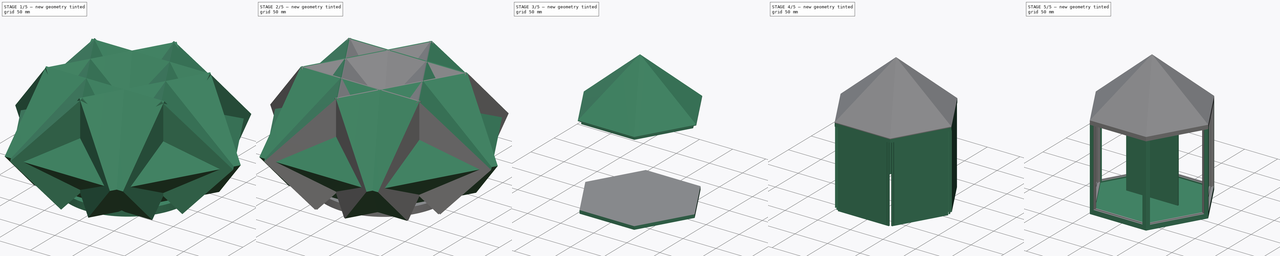
[diagram: build sequence overview — one tinted view per stage of 5, left to right]
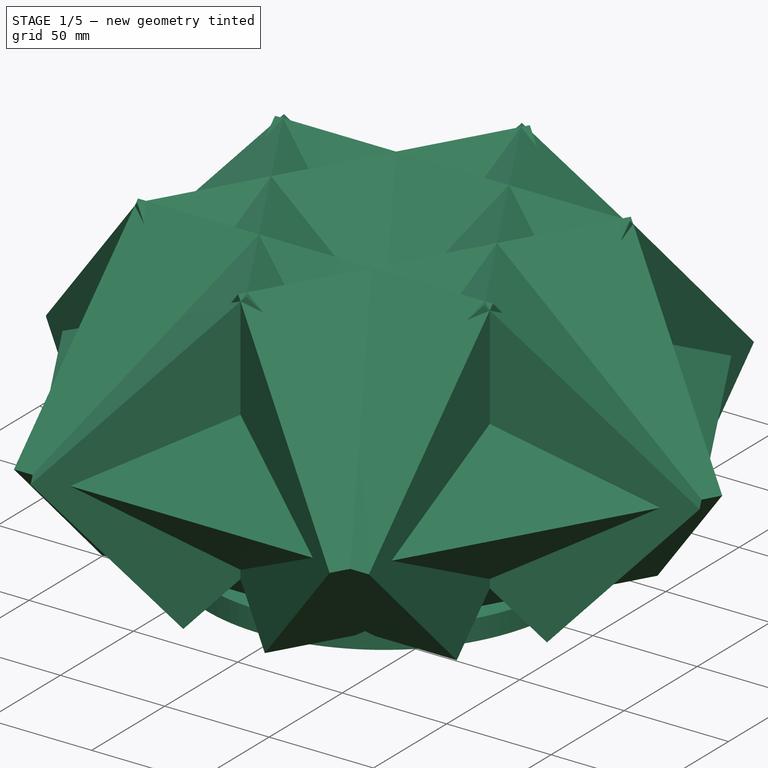
[diagram: stage 1 of 5 — iso view after this stage's code; geometry added in this stage tinted green]
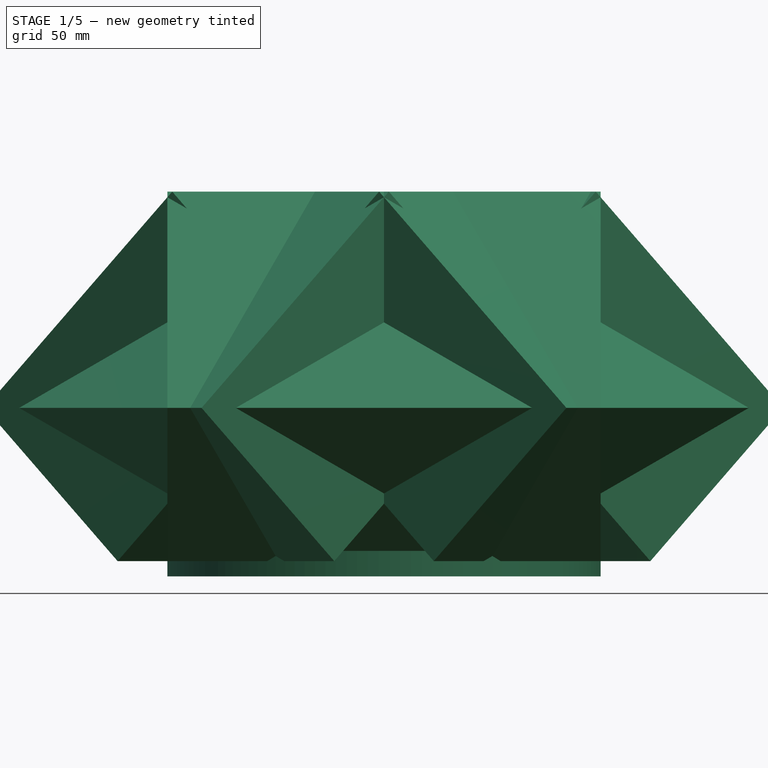
[diagram: stage 1 of 5 — front view after this stage's code; geometry added in this stage tinted green]
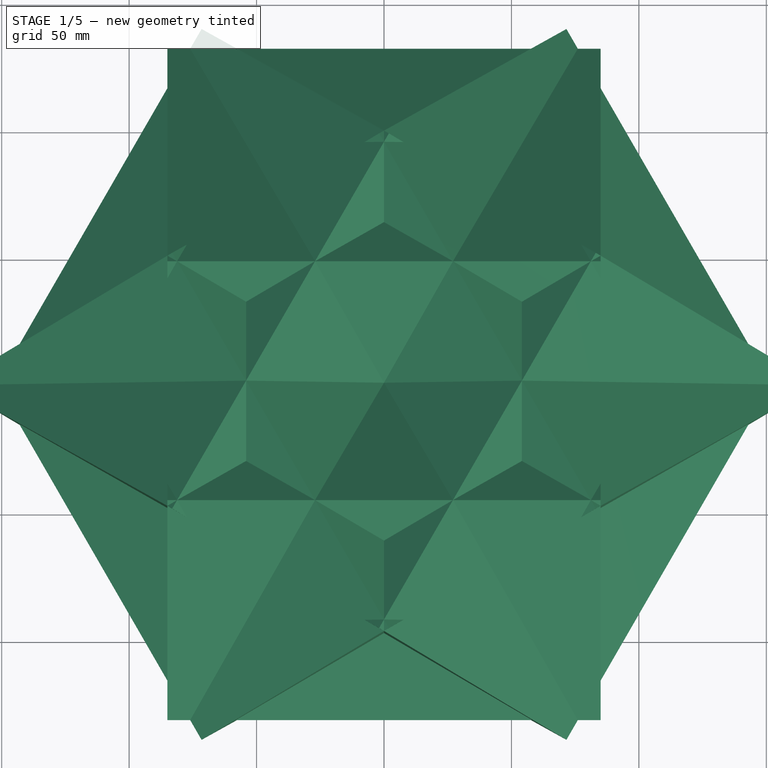
[diagram: stage 1 of 5 — top view after this stage's code; geometry added in this stage tinted green]
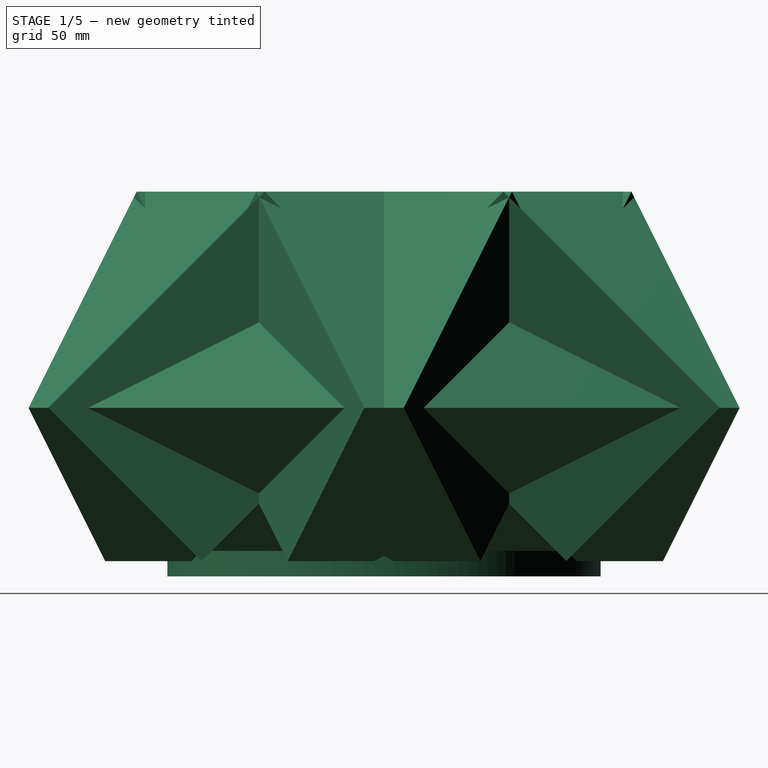
[diagram: stage 1 of 5 — right view after this stage's code; geometry added in this stage tinted green]
FCSTD DOCUMENT  (FreeCAD 1.0R1.0.1)
Label: Lantern2_Base
License: All rights reserved
LicenseURL: http://en.wikipedia.org/wiki/All_rights_reserved
objects: Sketcher::SketchObject×8, PartDesign::Pad×8, PartDesign::Body×8, Part::Cut×6, Part::MultiFuse×6, Part::Box×5, Part::FeaturePython×3, Part::Cylinder×2, Spreadsheet::Sheet×1, Part::MultiCommon×1
note: 68 computed .brp shape members not serialized (recipe doc carries the construction recipe); baked Part::Feature solids carry a one-line shape summary decoded from their .brp

FEATURE [Part::Box] Box004  label="Cube003"
  AttacherType = Attacher::AttachEngine3D
  Height = 120
  Length = 170
  Placement = pos=(-85,71.6122,6) rot=(1,0,0;0.785398rad)
  Width = 85
  expr: .Placement.Base.x = -<<LanternParams>>.len_a
  expr: .Placement.Base.y = <<LanternParams>>.len_a * cos(30) - <<LanternParams>>.t_wall
  expr: .Placement.Base.z = <<LanternParams>>.h_upper_ring + 1
  expr: Height = <<LanternParams>>.h_visible - <<LanternParams>>.l_insertlip
  expr: Length = 2 * <<LanternParams>>.len_a
  expr: Width = <<LanternParams>>.len_a
FEATURE [Part::FeaturePython] Array002  # Draft array (typed FeaturePython)
  AlwaysSyncPlacement = false
  Angle = 360
  ArrayType = 1
  Axis = (0,0,1)
  Base = -> Box004
  Center = (0,0,0)
  Count = 6
  ExpandArray = false
  Fuse = false
  IntervalAxis = (0,0,0)
  IntervalX = (50,0,0)
  IntervalY = (0,50,0)
  IntervalZ = (0,0,50)
  NumberCircles = 3
  NumberPolar = 6
  NumberX = 2
  NumberY = 2
  NumberZ = 1
  PlacementList = 6 placements: [(-85,71.6122,6),(-104.518,-37.8061,6),(-19.5179,-109.418,6),(85,-71.6122,6),(104.518,37.8061,6),(19.5179,109.418,6)]
  RadialDistance = 50
  ScaleList = (6) [(1,1,1),(1,1,1),(1,1,1),(1,1,1),(1,1,1),(1,1,1)]
  Symmetry = 1
  TangentialDistance = 25
FEATURE [Part::MultiFuse] Fusion005
  Shapes = -> [Array002]
FEATURE [Part::Cylinder] Cylinder
  Angle = 360
  AttacherType = Attacher::AttachEngine3D
  FirstAngle = 0
  Height = 10
  Radius = 85
  SecondAngle = 0
  expr: Height = <<LanternParams>>.h_upper_ring + <<LanternParams>>.t_base
  expr: Radius = <<LanternParams>>.len_a
FEATURE [Part::Cylinder] Cylinder001
  Angle = 360
  AttacherType = Attacher::AttachEngine3D
  FirstAngle = 0
  Height = 10
  Radius = 42.5
  SecondAngle = 0
  expr: Height = <<LanternParams>>.h_upper_ring + <<LanternParams>>.t_base
  expr: Radius = <<LanternParams>>.len_a / 2
FEATURE [Part::Cut] Cut005
  Base = -> Cylinder
  Tool = -> Cylinder001
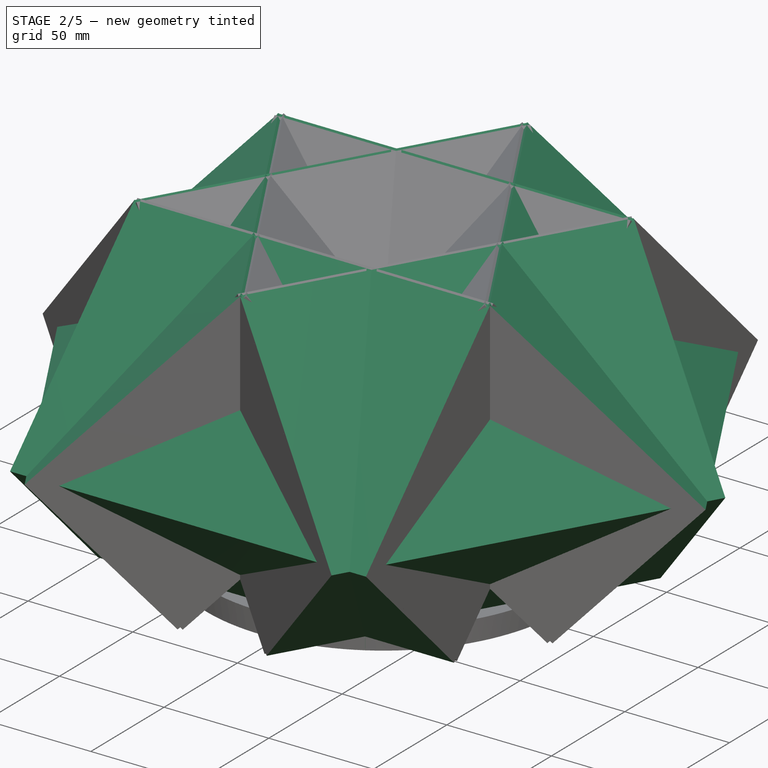
[diagram: stage 2 of 5 — iso view after this stage's code; geometry added in this stage tinted green]
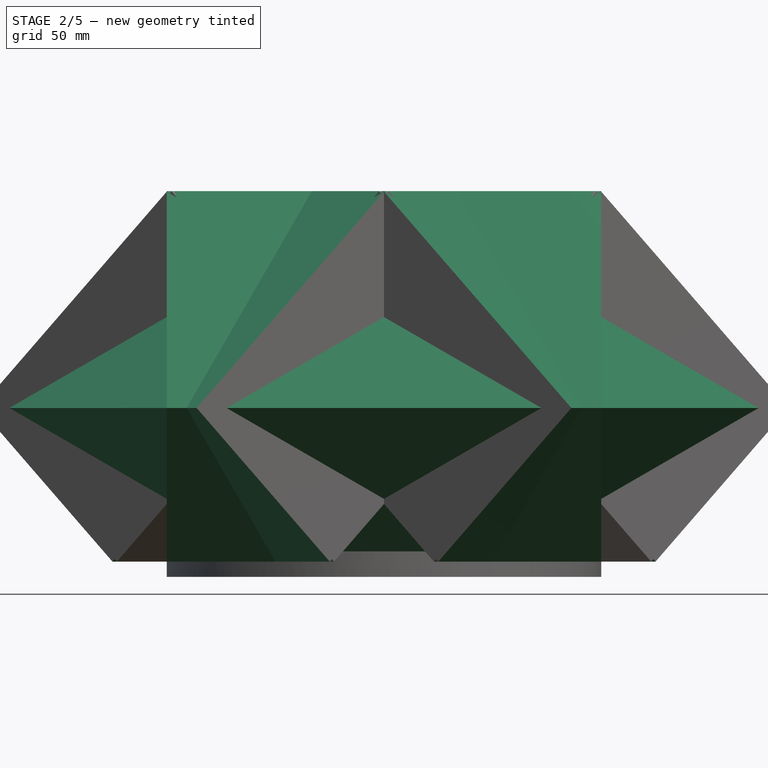
[diagram: stage 2 of 5 — front view after this stage's code; geometry added in this stage tinted green]
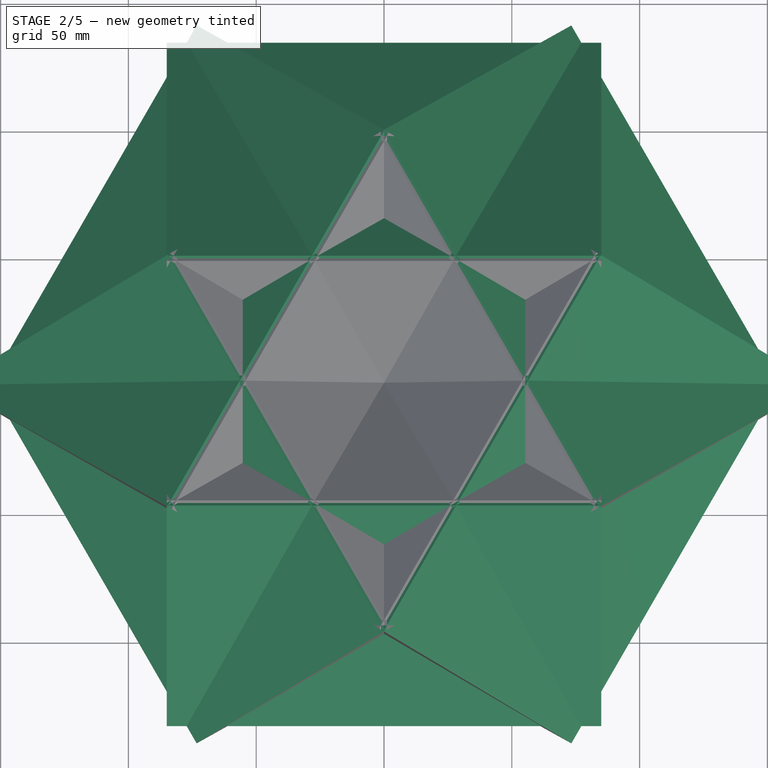
[diagram: stage 2 of 5 — top view after this stage's code; geometry added in this stage tinted green]
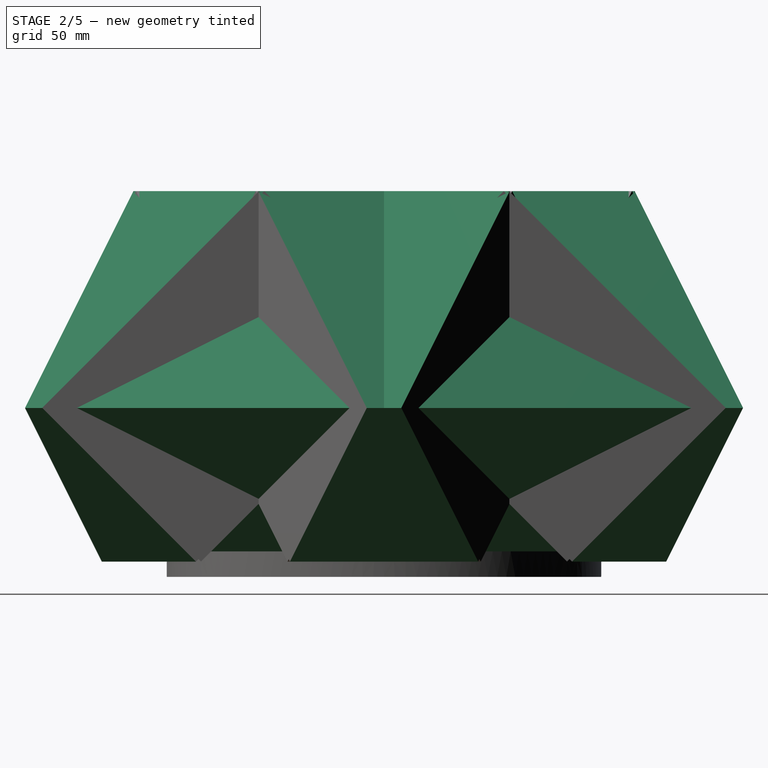
[diagram: stage 2 of 5 — right view after this stage's code; geometry added in this stage tinted green]
FEATURE [Sketcher::SketchObject] Sketch006
  ArcFitTolerance = 1e-06
  AttachmentSupport = -> [XY_Plane006]
  FullyConstrained = true
  MakeInternals = false
  MapMode = 5
  expr: Constraints[19] = <<LanternParams>>.len_a
  sketch-geometry (7):
    g0: LineSegment StartX=85 StartY=0 StartZ=0 EndX=42.5 EndY=73.6122 EndZ=0
    g1: LineSegment StartX=42.5 StartY=73.6122 StartZ=0 EndX=-42.5 EndY=73.6122 EndZ=0
    g2: LineSegment StartX=-42.5 StartY=73.6122 StartZ=0 EndX=-85 EndY=3.695e-13 EndZ=0
    g3: LineSegment StartX=-85 StartY=3.641e-13 StartZ=0 EndX=-42.5 EndY=-73.6122 EndZ=0
    g4: LineSegment StartX=-42.5 StartY=-73.6122 StartZ=0 EndX=42.5 EndY=-73.6122 EndZ=0
    g5: LineSegment StartX=42.5 StartY=-73.6122 StartZ=0 EndX=85 EndY=0 EndZ=0
    g6: Circle [constr] CenterX=0 CenterY=0 CenterZ=0 NormalX=0 NormalY=0 NormalZ=1 AngleXU=0 Radius=85
  constraints (16):
    c: Coincident(g0,g1)
    c: Coincident(g1,g2)
    c: Coincident(g2,g3)
    c: Coincident(g3,g4)
    c: Coincident(g4,g5)
    c: Coincident(g5,g0)
    c: Equal(g0, g1-g5) x5
    c: PointOnObject(g0,g6)
    c: PointOnObject(g1,g6)
    c: PointOnObject(g2,g6)
    c: PointOnObject(g3,g6)
    c: PointOnObject(g4,g6)
    c: PointOnObject(g5,g6)
    c: Coincident(g6,g-1)
    c: PointOnObject(g5,g-1)
    c: Distance(g6,g0) = 85
FEATURE [PartDesign::Pad] Pad006
  Direction = (0,0,1)
  Length = 80.3812
  Length2 = 10
  Profile = -> Sketch006
  ReferenceAxis = -> Sketch006 [N_Axis]
  Suppressed = false
  Type = 0
  expr: Length = <<LanternParams>>.len_a - (<<LanternParams>>.t_wall + <<LanternParams>>.t_insert) / sin(60)
FEATURE [PartDesign::Body] Body006
  AllowCompound = false
  Group = -> [Sketch006,Pad006]
  Origin = -> Origin006
  Placement = pos=(0,0,5) rot=(0,0,1;0rad)
  Tip = -> Pad006
FEATURE [Sketcher::SketchObject] Sketch007
  ArcFitTolerance = 1e-06
  AttachmentSupport = -> [XY_Plane007]
  FullyConstrained = true
  MakeInternals = false
  MapMode = 5
  expr: Constraints[19] = <<LanternParams>>.len_a - (<<LanternParams>>.t_wall * 2 + <<LanternParams>>.t_insert) / sin(60) - 0.4
  sketch-geometry (7):
    g0: LineSegment StartX=77.6718 StartY=0 StartZ=0 EndX=38.8359 EndY=67.2657 EndZ=0
    g1: LineSegment StartX=38.8359 StartY=67.2657 StartZ=0 EndX=-38.8359 EndY=67.2657 EndZ=0
    g2: LineSegment StartX=-38.8359 StartY=67.2657 StartZ=0 EndX=-77.6718 EndY=-4.832e-13 EndZ=0
    g3: LineSegment StartX=-77.6718 StartY=-4.794e-13 StartZ=0 EndX=-38.8359 EndY=-67.2657 EndZ=0
    g4: LineSegment StartX=-38.8359 StartY=-67.2657 StartZ=0 EndX=38.8359 EndY=-67.2657 EndZ=0
    g5: LineSegment StartX=38.8359 StartY=-67.2657 StartZ=0 EndX=77.6718 EndY=0 EndZ=0
    g6: Circle [constr] CenterX=0 CenterY=0 CenterZ=0 NormalX=0 NormalY=0 NormalZ=1 AngleXU=0 Radius=77.6718
  constraints (16):
    c: Coincident(g0,g1)
    c: Coincident(g1,g2)
    c: Coincident(g2,g3)
    c: Coincident(g3,g4)
    c: Coincident(g4,g5)
    c: Coincident(g5,g0)
    c: Equal(g0, g1-g5) x5
    c: PointOnObject(g0,g6)
    c: PointOnObject(g1,g6)
    c: PointOnObject(g2,g6)
    c: PointOnObject(g3,g6)
    c: PointOnObject(g4,g6)
    c: PointOnObject(g5,g6)
    c: Coincident(g6,g-1)
    c: PointOnObject(g5,g-1)
    c: Distance(g6,g0) = 77.6718
FEATURE [PartDesign::Pad] Pad007
  Direction = (0,0,1)
  Length = 5
  Length2 = 10
  Profile = -> Sketch007
  ReferenceAxis = -> Sketch007 [N_Axis]
  Suppressed = false
  Type = 0
  expr: Length = <<LanternParams>>.h_upper_ring
FEATURE [PartDesign::Body] Body007
  AllowCompound = false
  Group = -> [Sketch007,Pad007]
  Origin = -> Origin007
  Tip = -> Pad007
FEATURE [Part::Box] Box003  label="Cube002"
  AttacherType = Attacher::AttachEngine3D
  Height = 120
  Length = 170
  Placement = pos=(-85,73.6122,6) rot=(1,0,0;0.785398rad)
  Width = 85
  expr: .Placement.Base.x = -<<LanternParams>>.len_a
  expr: .Placement.Base.y = <<LanternParams>>.len_a * cos(30)
  expr: .Placement.Base.z = <<LanternParams>>.h_upper_ring + 1
  expr: Height = <<LanternParams>>.h_visible - <<LanternParams>>.l_insertlip
  expr: Length = 2 * <<LanternParams>>.len_a
  expr: Width = <<LanternParams>>.len_a
FEATURE [Part::FeaturePython] Array001  # Draft array (typed FeaturePython)
  AlwaysSyncPlacement = false
  Angle = 360
  ArrayType = 1
  Axis = (0,0,1)
  Base = -> Box003
  Center = (0,0,0)
  Count = 6
  ExpandArray = false
  Fuse = false
  IntervalAxis = (0,0,0)
  IntervalX = (50,0,0)
  IntervalY = (0,50,0)
  IntervalZ = (0,0,50)
  NumberCircles = 3
  NumberPolar = 6
  NumberX = 2
  NumberY = 2
  NumberZ = 1
  PlacementList = 6 placements: [(-85,73.6122,6),(-106.25,-36.8061,6),(-21.25,-110.418,6),(85,-73.6122,6),(106.25,36.8061,6),(21.25,110.418,6)]
  RadialDistance = 50
  ScaleList = (6) [(1,1,1),(1,1,1),(1,1,1),(1,1,1),(1,1,1),(1,1,1)]
  Symmetry = 1
  TangentialDistance = 25
FEATURE [Part::MultiFuse] Fusion004
  Shapes = -> [Array001]
FEATURE [Part::MultiFuse] Fusion006
  Shapes = -> [Fusion005,Cut005]
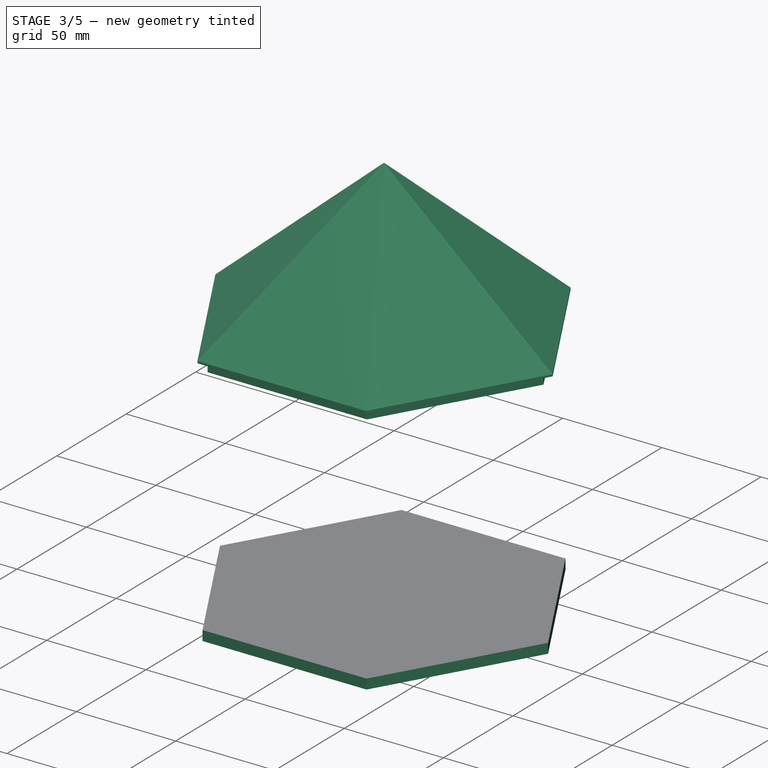
[diagram: stage 3 of 5 — iso view after this stage's code; geometry added in this stage tinted green]
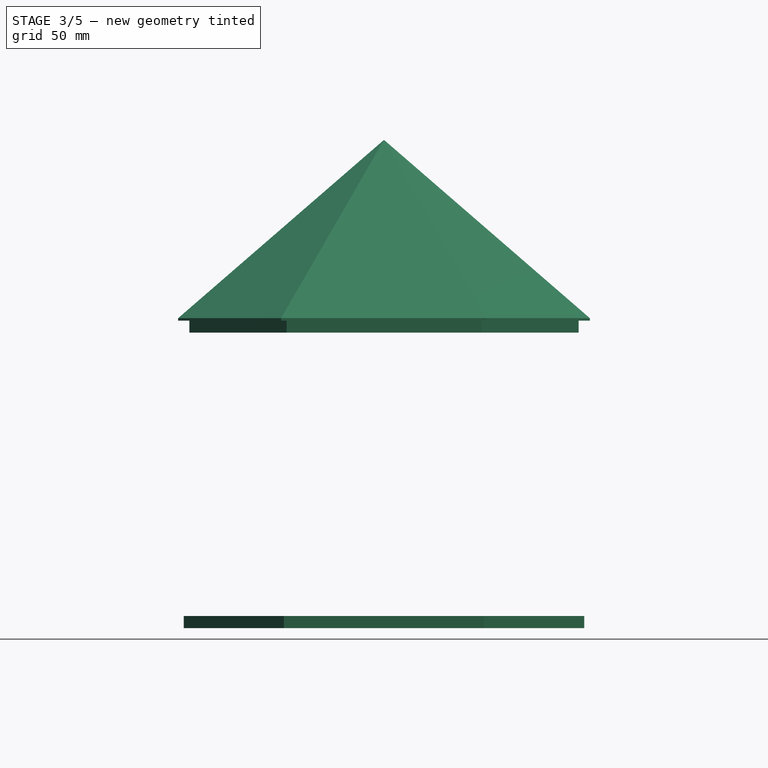
[diagram: stage 3 of 5 — front view after this stage's code; geometry added in this stage tinted green]
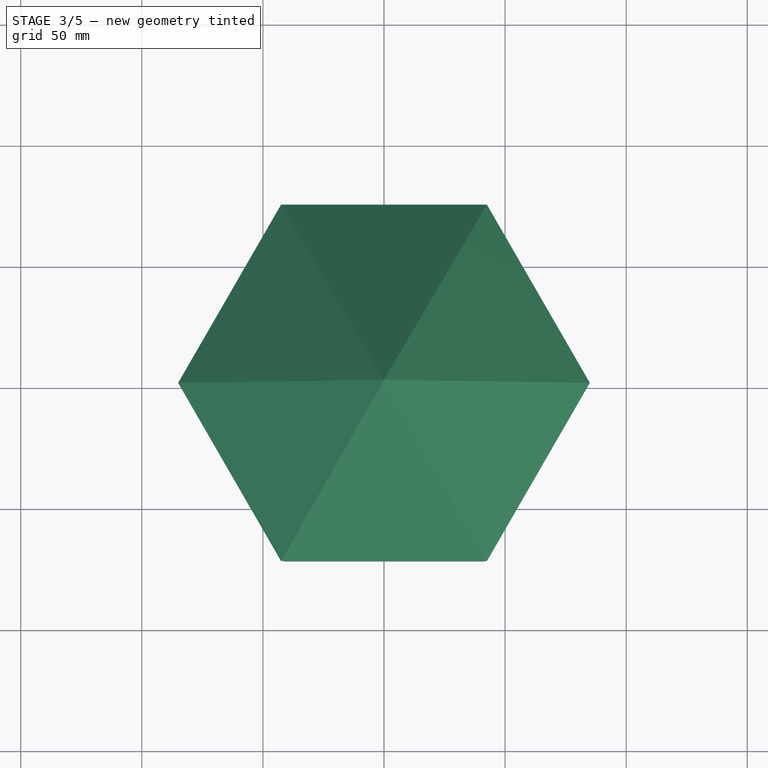
[diagram: stage 3 of 5 — top view after this stage's code; geometry added in this stage tinted green]
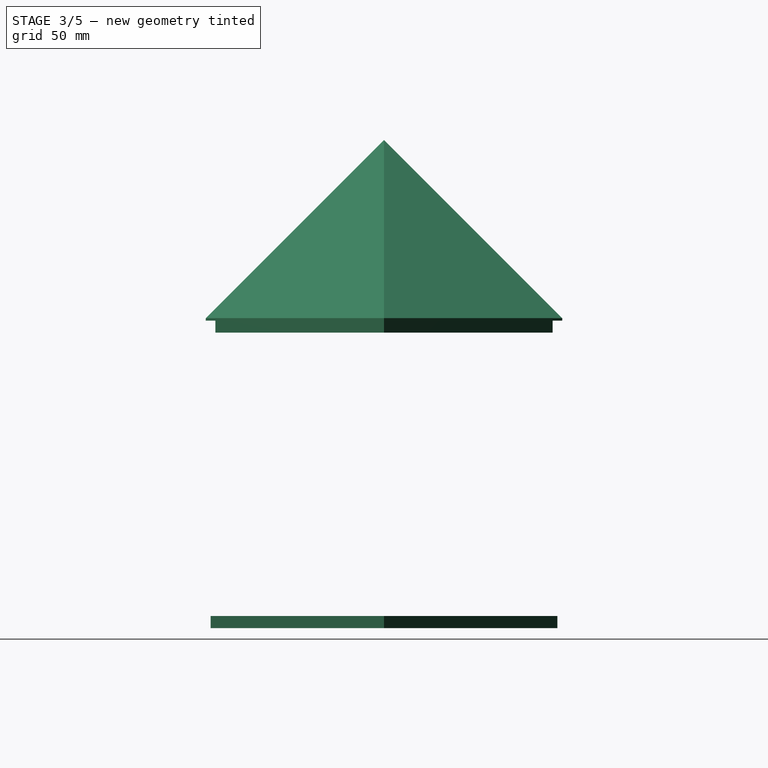
[diagram: stage 3 of 5 — right view after this stage's code; geometry added in this stage tinted green]
FEATURE [PartDesign::Body] Body002
  AllowCompound = false
  Group = -> [Sketch002,Pad002]
  Origin = -> Origin002
  Tip = -> Pad002
FEATURE [Sketcher::SketchObject] Sketch003
  ArcFitTolerance = 1e-06
  AttachmentSupport = -> [XY_Plane003]
  FullyConstrained = true
  MakeInternals = false
  MapMode = 5
  expr: Constraints[19] = <<LanternParams>>.len_a - <<LanternParams>>.t_wall / sin(60)
  sketch-geometry (7):
    g0: LineSegment StartX=82.6906 StartY=0 StartZ=0 EndX=41.3453 EndY=71.6122 EndZ=0
    g1: LineSegment StartX=41.3453 StartY=71.6122 StartZ=0 EndX=-41.3453 EndY=71.6122 EndZ=0
    g2: LineSegment StartX=-41.3453 StartY=71.6122 StartZ=0 EndX=-82.6906 EndY=-2.84e-14 EndZ=0
    g3: LineSegment StartX=-82.6906 StartY=-2.84e-14 StartZ=0 EndX=-41.3453 EndY=-71.6122 EndZ=0
    g4: LineSegment StartX=-41.3453 StartY=-71.6122 StartZ=0 EndX=41.3453 EndY=-71.6122 EndZ=0
    g5: LineSegment StartX=41.3453 StartY=-71.6122 StartZ=0 EndX=82.6906 EndY=0 EndZ=0
    g6: Circle [constr] CenterX=0 CenterY=0 CenterZ=0 NormalX=0 NormalY=0 NormalZ=1 AngleXU=0 Radius=82.6906
  constraints (16):
    c: Coincident(g0,g1)
    c: Coincident(g1,g2)
    c: Coincident(g2,g3)
    c: Coincident(g3,g4)
    c: Coincident(g4,g5)
    c: Coincident(g5,g0)
    c: Equal(g0, g1-g5) x5
    c: PointOnObject(g0,g6)
    c: PointOnObject(g1,g6)
    c: PointOnObject(g2,g6)
    c: PointOnObject(g3,g6)
    c: PointOnObject(g4,g6)
    c: PointOnObject(g5,g6)
    c: Coincident(g6,g-1)
    c: PointOnObject(g5,g-1)
    c: Distance(g6,g0) = 82.6906
FEATURE [PartDesign::Pad] Pad003
  Direction = (0,0,1)
  Length = 5
  Length2 = 10
  Profile = -> Sketch003
  ReferenceAxis = -> Sketch003 [N_Axis]
  Suppressed = false
  Type = 0
  expr: Length = <<LanternParams>>.h_upper_ring
FEATURE [Sketcher::SketchObject] Sketch004
  ArcFitTolerance = 1e-06
  AttachmentSupport = -> [XY_Plane004]
  FullyConstrained = true
  MakeInternals = false
  MapMode = 5
  expr: Constraints[19] = <<LanternParams>>.len_a - (<<LanternParams>>.t_wall + <<LanternParams>>.t_insert) / sin(60)
  sketch-geometry (7):
    g0: LineSegment StartX=80.3812 StartY=0 StartZ=0 EndX=40.1906 EndY=69.6122 EndZ=0
    g1: LineSegment StartX=40.1906 StartY=69.6122 StartZ=0 EndX=-40.1906 EndY=69.6122 EndZ=0
    g2: LineSegment StartX=-40.1906 StartY=69.6122 StartZ=0 EndX=-80.3812 EndY=-1.42e-14 EndZ=0
    g3: LineSegment StartX=-80.3812 StartY=-1.24e-14 StartZ=0 EndX=-40.1906 EndY=-69.6122 EndZ=0
    g4: LineSegment StartX=-40.1906 StartY=-69.6122 StartZ=0 EndX=40.1906 EndY=-69.6122 EndZ=0
    g5: LineSegment StartX=40.1906 StartY=-69.6122 StartZ=0 EndX=80.3812 EndY=0 EndZ=0
    g6: Circle [constr] CenterX=0 CenterY=0 CenterZ=0 NormalX=0 NormalY=0 NormalZ=1 AngleXU=0 Radius=80.3812
  constraints (16):
    c: Coincident(g0,g1)
    c: Coincident(g1,g2)
    c: Coincident(g2,g3)
    c: Coincident(g3,g4)
    c: Coincident(g4,g5)
    c: Coincident(g5,g0)
    c: Equal(g0, g1-g5) x5
    c: PointOnObject(g0,g6)
    c: PointOnObject(g1,g6)
    c: PointOnObject(g2,g6)
    c: PointOnObject(g3,g6)
    c: PointOnObject(g4,g6)
    c: PointOnObject(g5,g6)
    c: Coincident(g6,g-1)
    c: PointOnObject(g5,g-1)
    c: Distance(g6,g0) = 80.3812
FEATURE [PartDesign::Pad] Pad004
  Direction = (0,0,1)
  Length = 5
  Length2 = 10
  Profile = -> Sketch004
  ReferenceAxis = -> Sketch004 [N_Axis]
  Suppressed = false
  Type = 0
  expr: Length = <<LanternParams>>.h_upper_ring
FEATURE [PartDesign::Body] Body004
  AllowCompound = false
  Group = -> [Sketch004,Pad004]
  Origin = -> Origin004
  Tip = -> Pad004
FEATURE [Sketcher::SketchObject] Sketch005
  ArcFitTolerance = 1e-06
  AttachmentSupport = -> [XY_Plane005]
  FullyConstrained = true
  MakeInternals = false
  MapMode = 5
  expr: Constraints[19] = <<LanternParams>>.len_a - (<<LanternParams>>.t_wall * 2 + <<LanternParams>>.t_insert) / sin(60)
  sketch-geometry (7):
    g0: LineSegment StartX=78.0718 StartY=0 StartZ=0 EndX=39.0359 EndY=67.6122 EndZ=0
    g1: LineSegment StartX=39.0359 StartY=67.6122 StartZ=0 EndX=-39.0359 EndY=67.6122 EndZ=0
    g2: LineSegment StartX=-39.0359 StartY=67.6122 StartZ=0 EndX=-78.0718 EndY=1.42e-14 EndZ=0
    g3: LineSegment StartX=-78.0718 StartY=1.08e-14 StartZ=0 EndX=-39.0359 EndY=-67.6122 EndZ=0
    g4: LineSegment StartX=-39.0359 StartY=-67.6122 StartZ=0 EndX=39.0359 EndY=-67.6122 EndZ=0
    g5: LineSegment StartX=39.0359 StartY=-67.6122 StartZ=0 EndX=78.0718 EndY=0 EndZ=0
    g6: Circle [constr] CenterX=0 CenterY=0 CenterZ=0 NormalX=0 NormalY=0 NormalZ=1 AngleXU=0 Radius=78.0718
  constraints (16):
    c: Coincident(g0,g1)
    c: Coincident(g1,g2)
    c: Coincident(g2,g3)
    c: Coincident(g3,g4)
    c: Coincident(g4,g5)
    c: Coincident(g5,g0)
    c: Equal(g0, g1-g5) x5
    c: PointOnObject(g0,g6)
    c: PointOnObject(g1,g6)
    c: PointOnObject(g2,g6)
    c: PointOnObject(g3,g6)
    c: PointOnObject(g4,g6)
    c: PointOnObject(g5,g6)
    c: Coincident(g6,g-1)
    c: PointOnObject(g5,g-1)
    c: Distance(g6,g0) = 78.0718
FEATURE [PartDesign::Pad] Pad005
  Direction = (0,0,1)
  Length = 5
  Length2 = 10
  Profile = -> Sketch005
  ReferenceAxis = -> Sketch005 [N_Axis]
  Suppressed = false
  Type = 0
  expr: Length = <<LanternParams>>.h_upper_ring
FEATURE [PartDesign::Body] Body005
  AllowCompound = false
  Group = -> [Sketch005,Pad005]
  Origin = -> Origin005
  Tip = -> Pad005
FEATURE [Part::Cut] Cut003
  Base = -> Body004
  Placement = pos=(0,0,122) rot=(0,0,1;0rad)
  Tool = -> Body005
  expr: .Placement.Base.z = <<LanternParams>>.t_base + <<LanternParams>>.h_visible - <<LanternParams>>.h_upper_ring
FEATURE [Part::MultiFuse] Fusion003
  Shapes = -> [Body007,Body006]
FEATURE [Part::Cut] Cut004
  Base = -> Fusion003
  Tool = -> Fusion004
FEATURE [Part::MultiCommon] Common
  Placement = pos=(0,0,122) rot=(0,0,1;0rad)
  Shapes = -> [Fusion006,Cut004]
  expr: .Placement.Base.z = <<LanternParams>>.h_visible + <<LanternParams>>.t_base - <<LanternParams>>.h_upper_ring
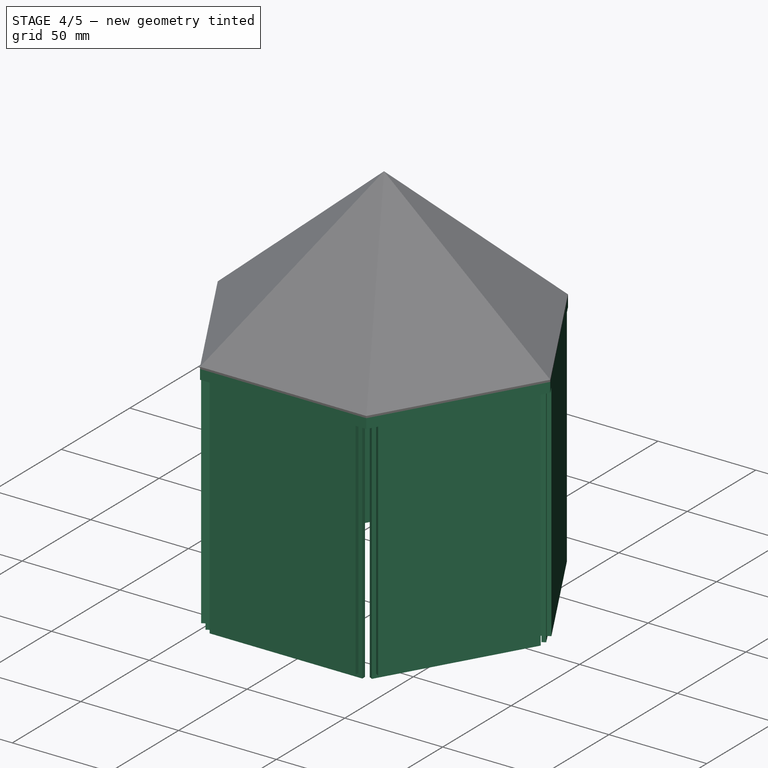
[diagram: stage 4 of 5 — iso view after this stage's code; geometry added in this stage tinted green]
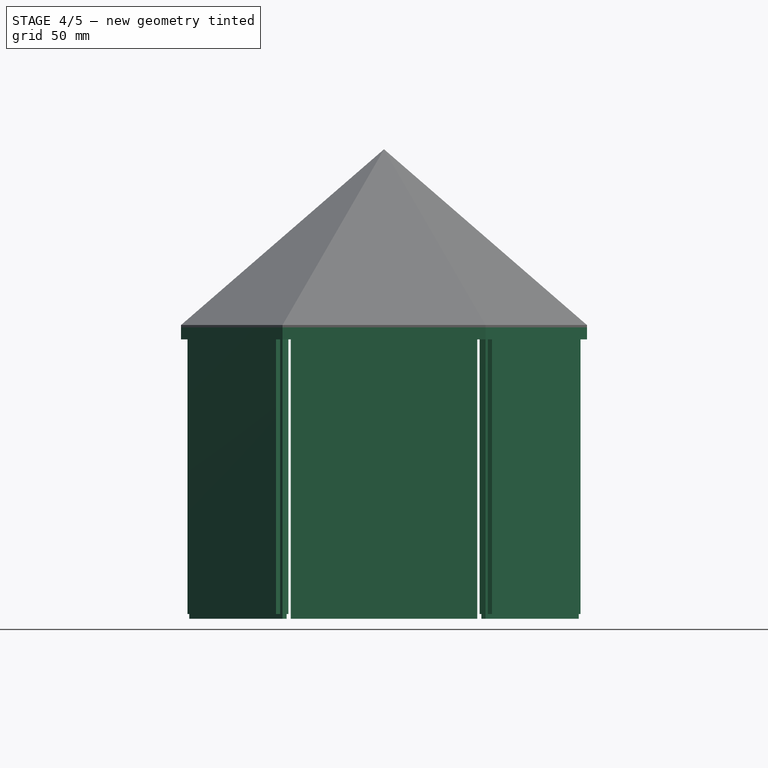
[diagram: stage 4 of 5 — front view after this stage's code; geometry added in this stage tinted green]
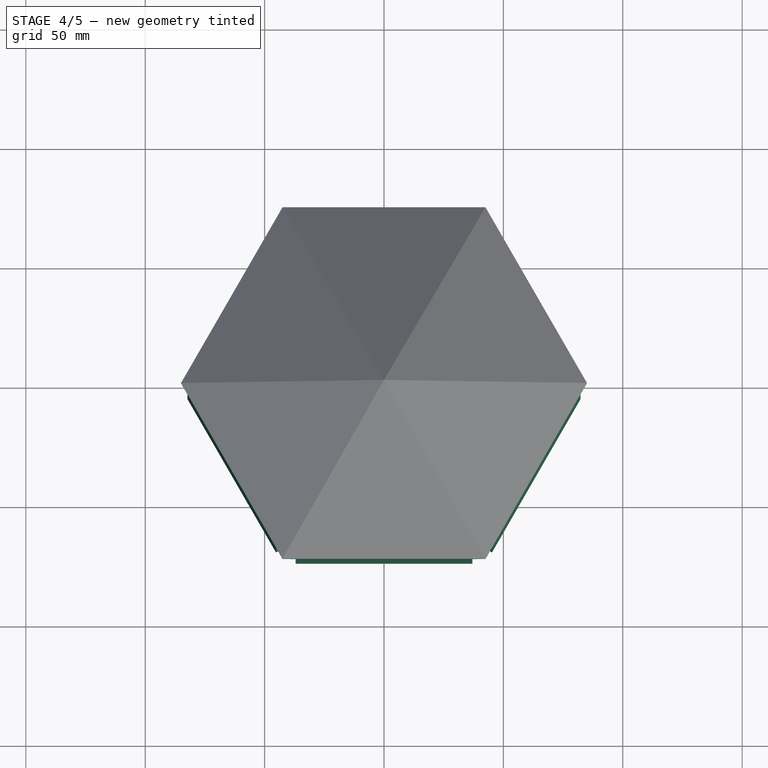
[diagram: stage 4 of 5 — top view after this stage's code; geometry added in this stage tinted green]
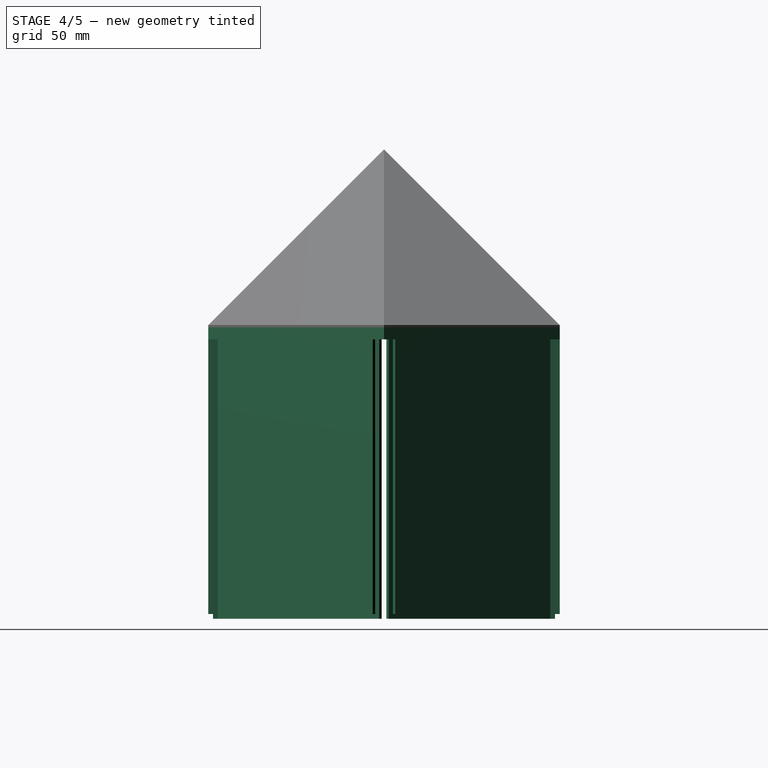
[diagram: stage 4 of 5 — right view after this stage's code; geometry added in this stage tinted green]
FEATURE [Part::Box] Box  label="Cube"
  AttacherType = Attacher::AttachEngine3D
  Height = 122
  Length = 78.0718
  Placement = pos=(-39.0359,69.6122,5) rot=(0,0,1;0rad)
  Width = 2
  expr: .Placement.Base.x = -(<<LanternParams>>.len_a - 2 * <<LanternParams>>.w_total / tan(60)) / 2
  expr: .Placement.Base.y = <<LanternParams>>.len_a * cos(30) - <<LanternParams>>.t_insert - <<LanternParams>>.t_wall
  expr: .Placement.Base.z = <<LanternParams>>.t_base
  expr: Height = <<LanternParams>>.h_visible
  expr: Length = <<LanternParams>>.len_a - 2 * <<LanternParams>>.w_total / tan(60)
  expr: Width = <<LanternParams>>.t_insert
FEATURE [Part::Box] Box001  label="Cube001"
  AttacherType = Attacher::AttachEngine3D
  Height = 120
  Length = 74.0718
  Placement = pos=(-37.0359,67.6122,7) rot=(0,0,1;0rad)
  Width = 6
  expr: .Placement.Base.x = -(<<LanternParams>>.len_a - 2 * <<LanternParams>>.w_total / tan(60) - 2 * <<LanternParams>>.l_insertlip) / 2
  expr: .Placement.Base.y = <<LanternParams>>.len_a * cos(30) - <<LanternParams>>.t_insert - 2 * <<LanternParams>>.t_wall
  expr: .Placement.Base.z = <<LanternParams>>.t_base + <<LanternParams>>.l_insertlip
  expr: Height = <<LanternParams>>.h_visible - <<LanternParams>>.l_insertlip
  expr: Length = <<LanternParams>>.len_a - 2 * <<LanternParams>>.w_total / tan(60) - 2 * <<LanternParams>>.l_insertlip
  expr: Width = <<LanternParams>>.t_insert + 2 * <<LanternParams>>.t_wall
FEATURE [Part::MultiFuse] Fusion
  Shapes = -> [Box,Box001]
FEATURE [Part::FeaturePython] Array  # Draft array (typed FeaturePython)
  AlwaysSyncPlacement = false
  Angle = 360
  ArrayType = 1
  Axis = (0,0,1)
  Base = -> Fusion
  Center = (0,0,0)
  Count = 6
  ExpandArray = false
  Fuse = false
  IntervalAxis = (0,0,0)
  IntervalX = (50,0,0)
  IntervalY = (0,50,0)
  IntervalZ = (0,0,50)
  NumberCircles = 3
  NumberPolar = 6
  NumberX = 2
  NumberY = 2
  NumberZ = 1
  PlacementList = 6 placements: [(0,0,0),(0,0,0),(0,0,0),(0,0,0),(0,0,0),(0,0,0)]
  RadialDistance = 50
  ScaleList = (6) [(1,1,1),(1,1,1),(1,1,1),(1,1,1),(1,1,1),(1,1,1)]
  Symmetry = 1
  TangentialDistance = 25
FEATURE [Sketcher::SketchObject] Sketch002
  ArcFitTolerance = 1e-06
  AttachmentSupport = -> [XY_Plane002]
  FullyConstrained = true
  MakeInternals = false
  MapMode = 5
  expr: Constraints[19] = <<LanternParams>>.len_a
  sketch-geometry (7):
    g0: LineSegment StartX=85 StartY=0 StartZ=0 EndX=42.5 EndY=73.6122 EndZ=0
    g1: LineSegment StartX=42.5 StartY=73.6122 StartZ=0 EndX=-42.5 EndY=73.6122 EndZ=0
    g2: LineSegment StartX=-42.5 StartY=73.6122 StartZ=0 EndX=-85 EndY=-2.84e-14 EndZ=0
    g3: LineSegment StartX=-85 StartY=-2.84e-14 StartZ=0 EndX=-42.5 EndY=-73.6122 EndZ=0
    g4: LineSegment StartX=-42.5 StartY=-73.6122 StartZ=0 EndX=42.5 EndY=-73.6122 EndZ=0
    g5: LineSegment StartX=42.5 StartY=-73.6122 StartZ=0 EndX=85 EndY=0 EndZ=0
    g6: Circle [constr] CenterX=0 CenterY=0 CenterZ=0 NormalX=0 NormalY=0 NormalZ=1 AngleXU=0 Radius=85
  constraints (16):
    c: Coincident(g0,g1)
    c: Coincident(g1,g2)
    c: Coincident(g2,g3)
    c: Coincident(g3,g4)
    c: Coincident(g4,g5)
    c: Coincident(g5,g0)
    c: Equal(g0, g1-g5) x5
    c: PointOnObject(g0,g6)
    c: PointOnObject(g1,g6)
    c: PointOnObject(g2,g6)
    c: PointOnObject(g3,g6)
    c: PointOnObject(g4,g6)
    c: PointOnObject(g5,g6)
    c: Coincident(g6,g-1)
    c: PointOnObject(g5,g-1)
    c: Distance(g6,g0) = 85
FEATURE [PartDesign::Pad] Pad002
  Direction = (0,0,1)
  Length = 5
  Length2 = 10
  Profile = -> Sketch002
  ReferenceAxis = -> Sketch002 [N_Axis]
  Suppressed = false
  Type = 0
  expr: Length = <<LanternParams>>.h_upper_ring
FEATURE [PartDesign::Body] Body003
  AllowCompound = false
  Group = -> [Sketch003,Pad003]
  Origin = -> Origin003
  Tip = -> Pad003
FEATURE [Part::Cut] Cut002
  Base = -> Body002
  Placement = pos=(0,0,122) rot=(0,0,1;0rad)
  Tool = -> Body003
  expr: .Placement.Base.z = <<LanternParams>>.t_base + <<LanternParams>>.h_visible - <<LanternParams>>.h_upper_ring
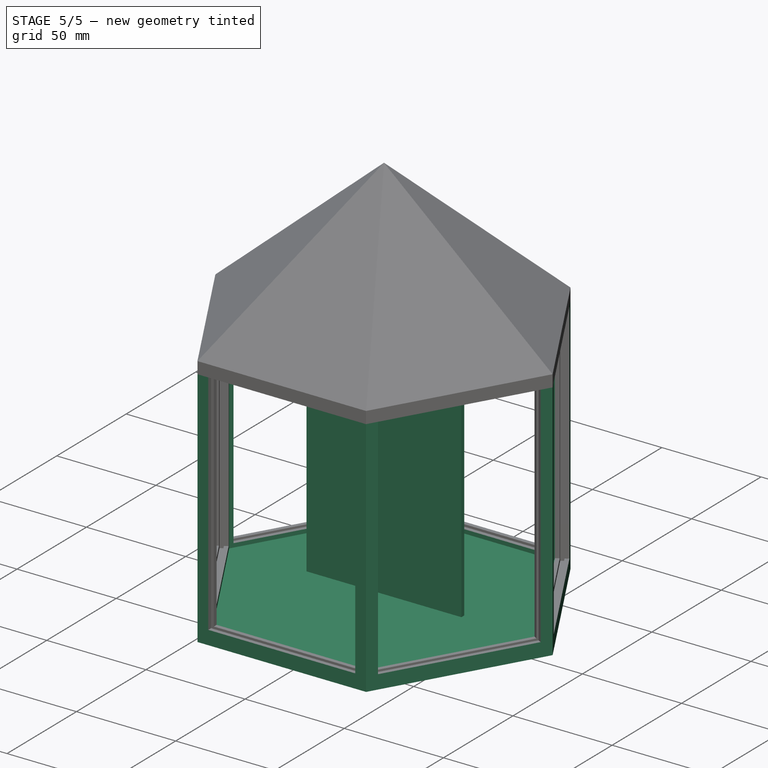
[diagram: stage 5 of 5 — iso view after this stage's code; geometry added in this stage tinted green]
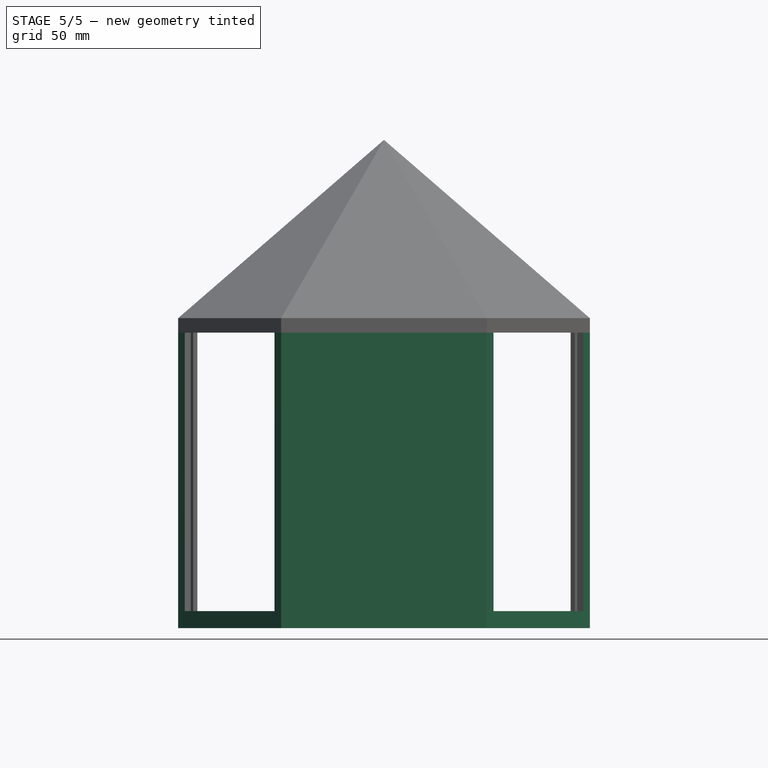
[diagram: stage 5 of 5 — front view after this stage's code; geometry added in this stage tinted green]
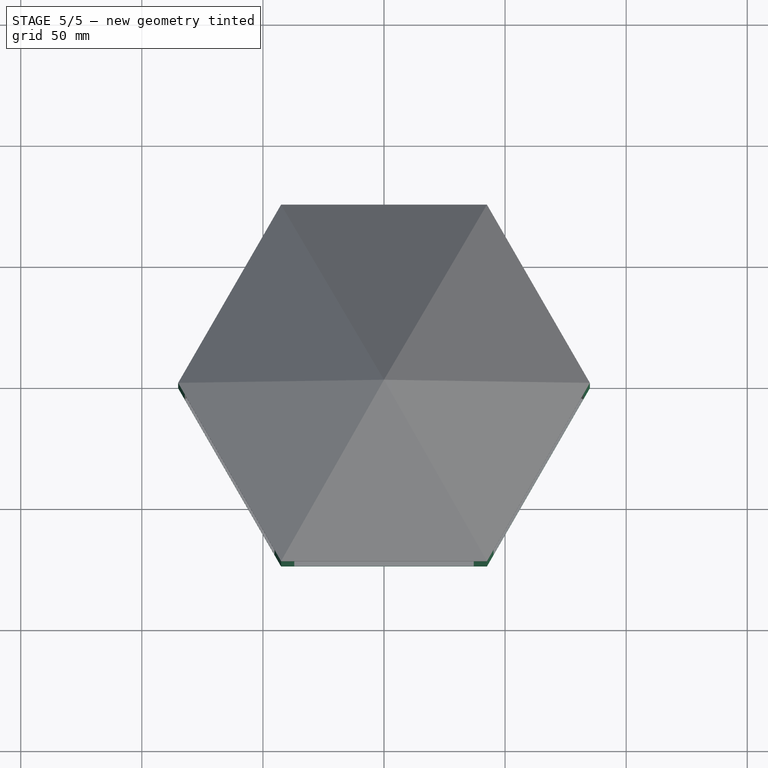
[diagram: stage 5 of 5 — top view after this stage's code; geometry added in this stage tinted green]
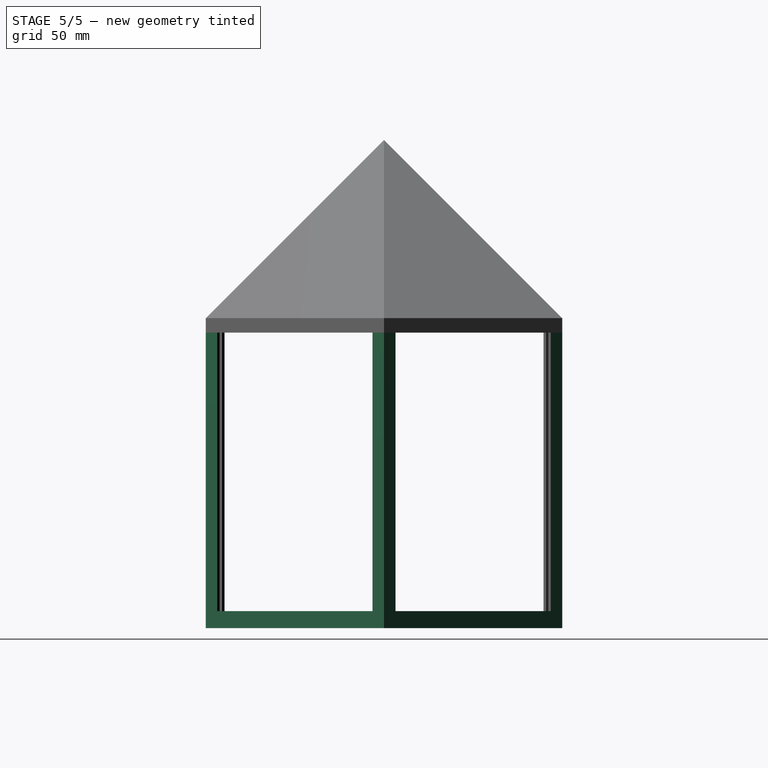
[diagram: stage 5 of 5 — right view after this stage's code; geometry added in this stage tinted green]
FEATURE [Spreadsheet::Sheet] Spreadsheet  label="LanternParams"
  cells = A2='Side length (a); B2(len_a)==50 * 1.7; E2='Base Circumference; F2(circumference_base)==2 * len_a; A3='Base Circumference; B3==2 * len_a; E3='Visible Height; F3(h_visible)==h_total - (2 * t_base + t_hollow); I3=50; A4='Total height; B4(h_total)=152; E4='Wall total; F4(w_total)==2 * t_wall + t_insert; I4=100; A5='Base thickness; B5(t_base)=5; E5='Inner a; F5(len_a_i)==len_a - w_total / sin(60); A6='Base Hollow Thickness; B6(t_hollow)=20; A7='Insert thickness; B7(t_insert)=2; H7='50 : 70; I7=0.7; A8='Wall thickness; B8(t_wall)=2; A9='Insert lip length; B9(l_insertlip)=2; A10='Upper ring height; B10(h_upper_ring)=5; A11='Insert Tolerance; B11=0.6
FEATURE [Sketcher::SketchObject] Sketch
  ArcFitTolerance = 1e-06
  AttachmentSupport = -> [XY_Plane]
  FullyConstrained = true
  MakeInternals = false
  MapMode = 5
  expr: Constraints[19] = <<LanternParams>>.len_a
  sketch-geometry (7):
    g0: LineSegment StartX=85 StartY=0 StartZ=0 EndX=42.5 EndY=73.6122 EndZ=0
    g1: LineSegment StartX=42.5 StartY=73.6122 StartZ=0 EndX=-42.5 EndY=73.6122 EndZ=0
    g2: LineSegment StartX=-42.5 StartY=73.6122 StartZ=0 EndX=-85 EndY=-4.26e-14 EndZ=0
    g3: LineSegment StartX=-85 StartY=-4.26e-14 StartZ=0 EndX=-42.5 EndY=-73.6122 EndZ=0
    g4: LineSegment StartX=-42.5 StartY=-73.6122 StartZ=0 EndX=42.5 EndY=-73.6122 EndZ=0
    g5: LineSegment StartX=42.5 StartY=-73.6122 StartZ=0 EndX=85 EndY=0 EndZ=0
    g6: Circle [constr] CenterX=0 CenterY=0 CenterZ=0 NormalX=0 NormalY=0 NormalZ=1 AngleXU=0 Radius=85
  constraints (16):
    c: Coincident(g0,g1)
    c: Coincident(g1,g2)
    c: Coincident(g2,g3)
    c: Coincident(g3,g4)
    c: Coincident(g4,g5)
    c: Coincident(g5,g0)
    c: Equal(g0, g1-g5) x5
    c: PointOnObject(g0,g6)
    c: PointOnObject(g1,g6)
    c: PointOnObject(g2,g6)
    c: PointOnObject(g3,g6)
    c: PointOnObject(g4,g6)
    c: PointOnObject(g5,g6)
    c: Coincident(g6,g-1)
    c: PointOnObject(g5,g-1)
    c: Distance(g6,g0) = 85
FEATURE [PartDesign::Pad] Pad
  Direction = (0,0,1)
  Length = 127
  Length2 = 10
  Profile = -> Sketch
  ReferenceAxis = -> Sketch [N_Axis]
  Suppressed = false
  Type = 0
  expr: Length = <<LanternParams>>.t_base + <<LanternParams>>.h_visible
FEATURE [PartDesign::Body] Body
  AllowCompound = false
  Group = -> [Sketch,Pad]
  Origin = -> Origin
  Tip = -> Pad
FEATURE [Sketcher::SketchObject] Sketch001
  ArcFitTolerance = 1e-06
  AttachmentSupport = -> [XY_Plane001]
  FullyConstrained = true
  MakeInternals = false
  MapMode = 5
  expr: Constraints[19] = <<LanternParams>>.len_a_i
  sketch-geometry (7):
    g0: LineSegment StartX=78.0718 StartY=0 StartZ=0 EndX=39.0359 EndY=67.6122 EndZ=0
    g1: LineSegment StartX=39.0359 StartY=67.6122 StartZ=0 EndX=-39.0359 EndY=67.6122 EndZ=0
    g2: LineSegment StartX=-39.0359 StartY=67.6122 StartZ=0 EndX=-78.0718 EndY=-1.42e-14 EndZ=0
    g3: LineSegment StartX=-78.0718 StartY=-1.48e-14 StartZ=0 EndX=-39.0359 EndY=-67.6122 EndZ=0
    g4: LineSegment StartX=-39.0359 StartY=-67.6122 StartZ=0 EndX=39.0359 EndY=-67.6122 EndZ=0
    g5: LineSegment StartX=39.0359 StartY=-67.6122 StartZ=0 EndX=78.0718 EndY=0 EndZ=0
    g6: Circle [constr] CenterX=0 CenterY=0 CenterZ=0 NormalX=0 NormalY=0 NormalZ=1 AngleXU=0 Radius=78.0718
  constraints (16):
    c: Coincident(g0,g1)
    c: Coincident(g1,g2)
    c: Coincident(g2,g3)
    c: Coincident(g3,g4)
    c: Coincident(g4,g5)
    c: Coincident(g5,g0)
    c: Equal(g0, g1-g5) x5
    c: PointOnObject(g0,g6)
    c: PointOnObject(g1,g6)
    c: PointOnObject(g2,g6)
    c: PointOnObject(g3,g6)
    c: PointOnObject(g4,g6)
    c: PointOnObject(g5,g6)
    c: Coincident(g6,g-1)
    c: PointOnObject(g5,g-1)
    c: Distance(g6,g0) = 78.0718
FEATURE [PartDesign::Pad] Pad001
  Direction = (0,0,1)
  Length = 122
  Length2 = 10
  Profile = -> Sketch001
  ReferenceAxis = -> Sketch001 [N_Axis]
  Suppressed = false
  Type = 0
  expr: Length = <<LanternParams>>.h_visible
FEATURE [PartDesign::Body] Body001
  AllowCompound = false
  Group = -> [Sketch001,Pad001]
  Origin = -> Origin001
  Placement = pos=(0,0,5) rot=(0,0,1;0rad)
  Tip = -> Pad001
  expr: .Placement.Base.z = <<LanternParams>>.t_base
FEATURE [Part::Cut] Cut
  Base = -> Body
  Tool = -> Body001
FEATURE [Part::Box] Box002  label="InsertBlank"
  AttacherType = Attacher::AttachEngine3D
  Height = 122
  Length = 78.0718
  Placement = pos=(-39.0359,0,0) rot=(0,0,1;0rad)
  Width = 2
  expr: .Placement.Base.x = -(<<LanternParams>>.len_a - 2 * <<LanternParams>>.w_total / tan(60)) / 2
  expr: Height = <<LanternParams>>.h_visible
  expr: Length = <<LanternParams>>.len_a - 2 * <<LanternParams>>.w_total / tan(60)
  expr: Width = <<LanternParams>>.t_insert
FEATURE [Part::Cut] Cut001
  Base = -> Cut
  Tool = -> Array
FEATURE [Part::MultiFuse] Fusion002
  Shapes = -> [Cut002,Cut003,Cut001]
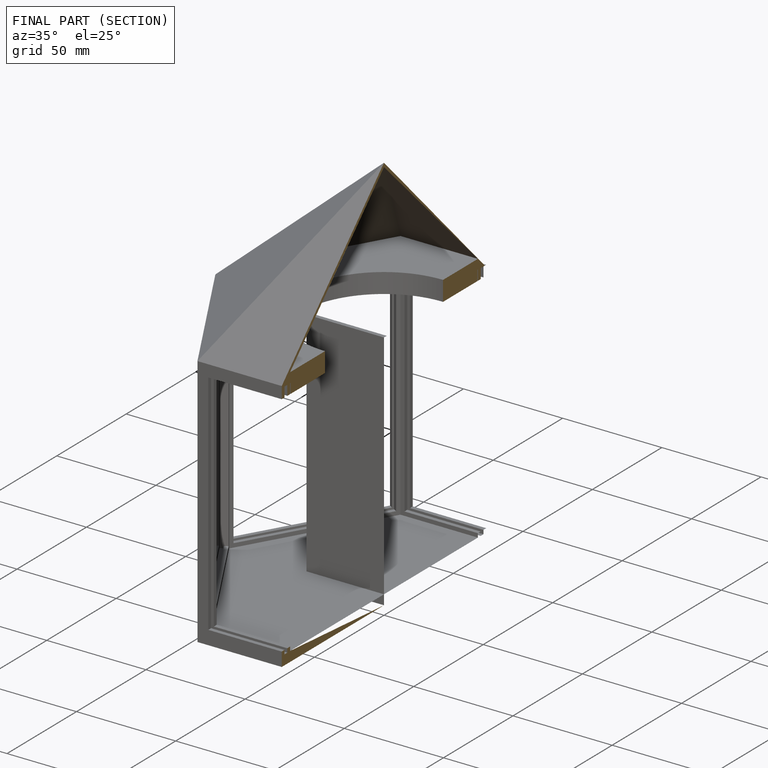
[diagram: finished part — half-section view (interior)]
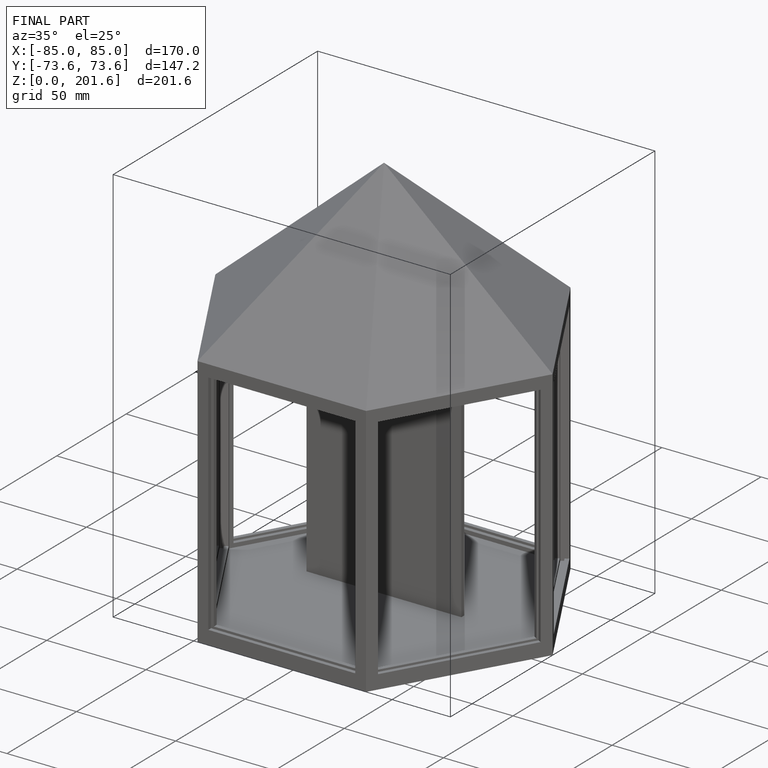
[diagram: finished part — iso view with bounding-box wireframe]
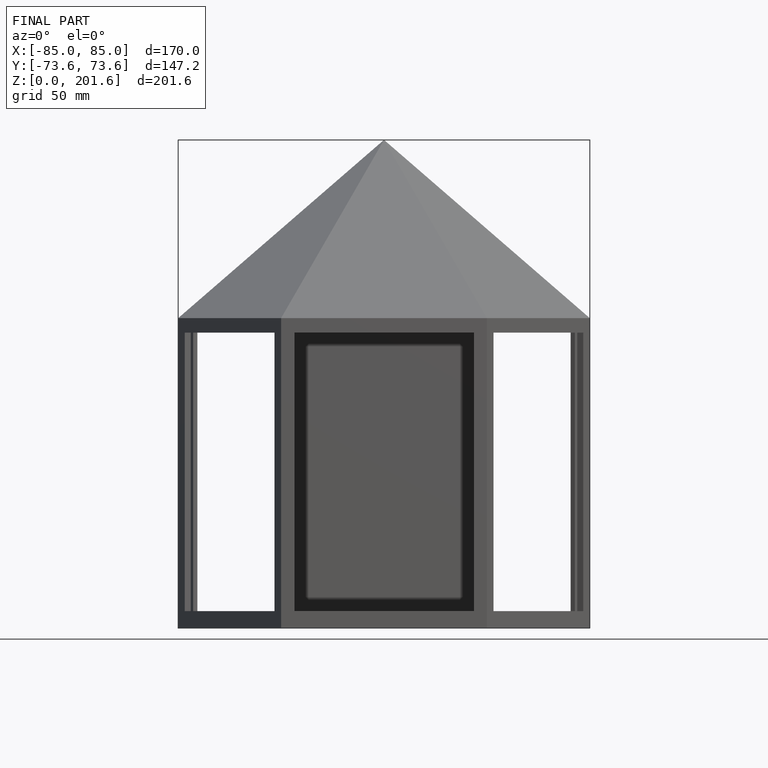
[diagram: finished part — front view with bounding-box wireframe]
